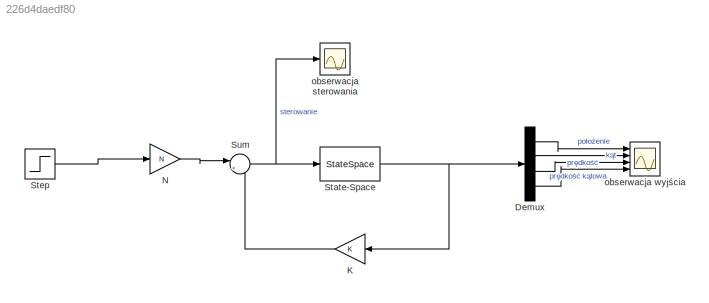
MODEL slx_226d4daedf80
KIND model
CONFIG AbsTol = auto
CONFIG EnableMultiTasking = off
CONFIG FixedStep = auto
CONFIG MaxStep = auto
CONFIG MinStep = auto
CONFIG RelTol = 1e-3
CONFIG SampleTimeConstraint = Unconstrained
CONFIG SolverName = VariableStepAuto
CONFIG StartTime = 0.0
CONFIG StopTime = 4.0
BLOCK [Demux] Demux
  Ports = [1, 4]
BLOCK [Gain] K
  Gain = K
  Multiplication = Matrix(K*u)
  NameLocation = top
BLOCK [Gain] N
  Gain = N
BLOCK [StateSpace] State-Space
  A = A
  B = B
  C = C
  D = D
  InitialCondition = [0; 0;0.15;0]
  Ports = [1, 1]
BLOCK [Step] Step
  SampleTime = 0
  Time = 0
BLOCK [Sum] Sum
  Inputs = |+-
  Ports = [2, 1]
BLOCK [Scope] obserwacja sterowania
  Floating = off
  NumInputPorts = 1
  Ports = [1]
  ScopeSpecificationString = Simulink.scopes.TimeScopeBlockCfg('CurrentConfiguration', extmgr.ConfigurationSet(extmgr.Configuration('Core','General UI',true),extmgr.Configuration('Core','Source UI',true),extmgr.Configuration('Sources','WiredSimulink',true),extmgr.Configuration('Visuals','Time Domain',true,'SerializedDisplays',{struct('MinYLimReal','-27.75354','MaxYLimReal','14.73191','YLabelReal','','MinYLimMag','0.00000','Ma...<+1365ch>
BLOCK [Scope] obserwacja wyjścia
  Floating = off
  NumInputPorts = 4
  Ports = [4]
  ScopeSpecificationString = Simulink.scopes.TimeScopeBlockCfg('CurrentConfiguration', extmgr.ConfigurationSet(extmgr.Configuration('Core','General UI',true),extmgr.Configuration('Core','Source UI',true),extmgr.Configuration('Sources','WiredSimulink',true,'DataLoggingVariableName','ScopeData1'),extmgr.Configuration('Visuals','Time Domain',true,'SerializedDisplays',{struct('MinYLimReal','-0.20469','MaxYLimReal','1.14461','YLab...<+3460ch>
LINE Demux:1 -> obserwacja wyjścia:1
LINE Demux:2 -> obserwacja wyjścia:2
LINE Demux:3 -> obserwacja wyjścia:3
LINE Demux:4 -> obserwacja wyjścia:4
LINE K:1 -> Sum:2
LINE N:1 -> Sum:1
NET State-Space:1 -> Demux:1, K:1
LINE Step:1 -> N:1
NET Sum:1 -> State-Space:1, obserwacja sterowania:1
note: NET lines group one-source signal fan-out (src -> all destinations, sorted); 1:1 wires keep LINE
